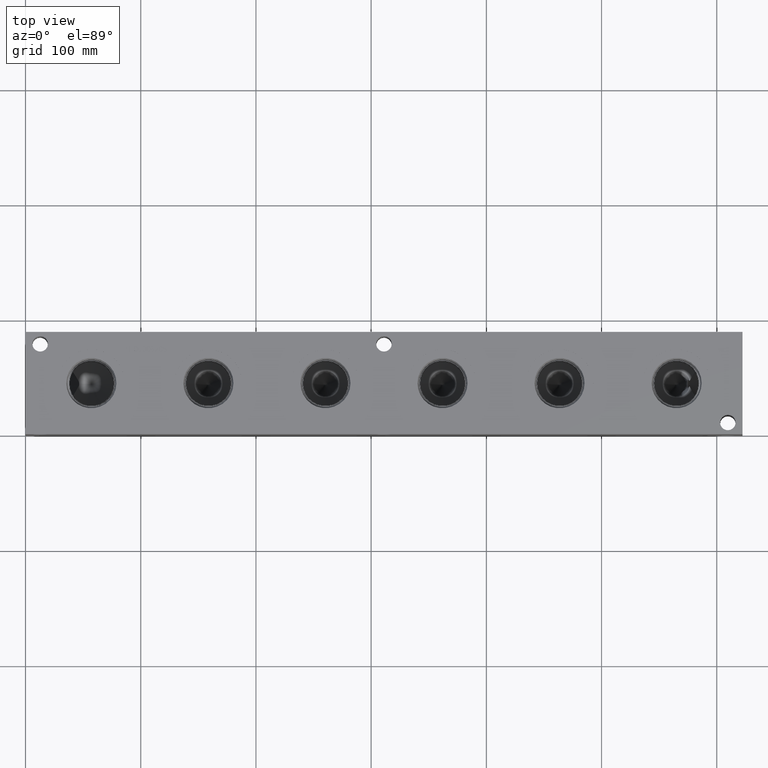
[diagram: clean part render]
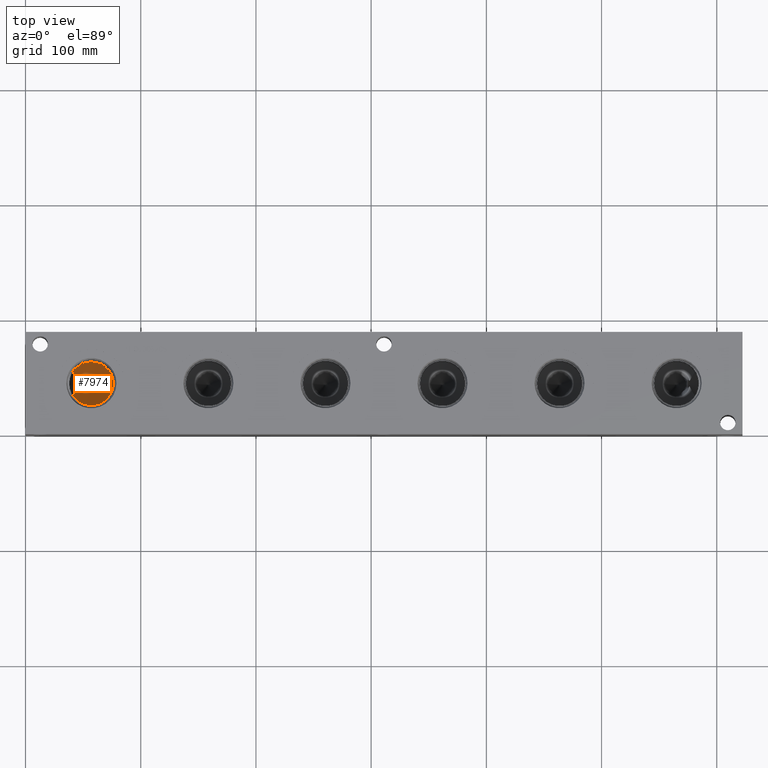
[diagram: same view with one face highlighted and labeled with its STEP entity id]
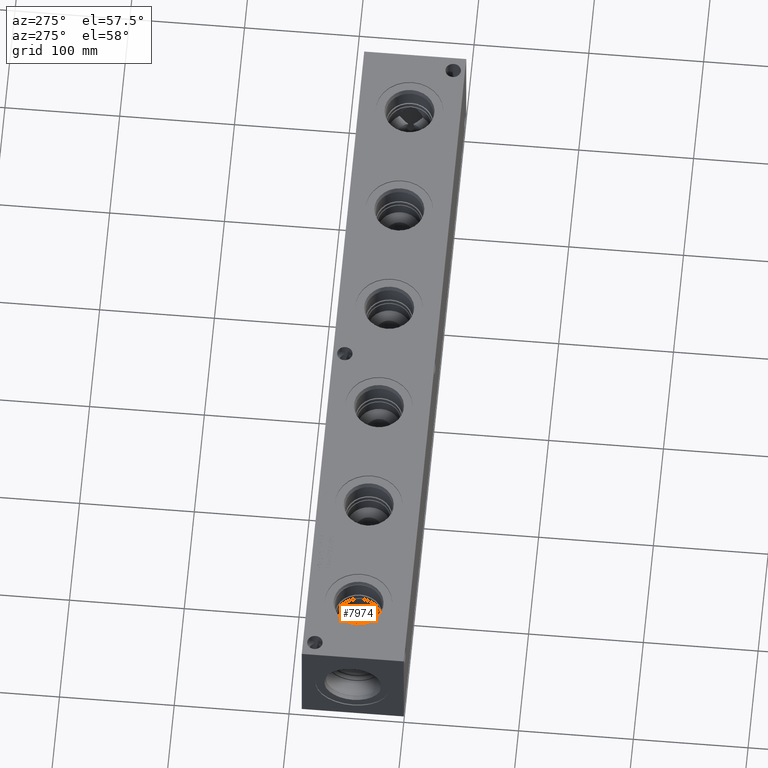
[diagram: same view with one face highlighted and labeled with its STEP entity id]
A machine part, top view. The second image highlights one B-rep face of the part: STEP entity #7974.
A second angle (auxiliary view) of the same face is appended — the face is thin or edge-on in the first view.
In plain terms, the highlighted conical surface has half-angle 60 deg.
Its self-contained STEP definition (entity closure, byte-faithful):
#35=CONICAL_SURFACE('',#8409,9.525,1.0471975511966);
#219=CIRCLE('',#8408,19.05);
#573=B_SPLINE_CURVE_WITH_KNOTS('',3,(#13819,#13820,#13821,#13822,#13823,
#13824,#13825,#13826,#13827,#13828,#13829,#13830),.UNSPECIFIED.,.F.,.F.,
(4,2,2,2,2,4),(2.06973539609364,2.66058533667687,3.10401622612301,3.32573167084609,
3.43658939320762,3.54744711556916),.UNSPECIFIED.);
#574=B_SPLINE_CURVE_WITH_KNOTS('',3,(#13831,#13832,#13833,#13834,#13835,
#13836,#13837,#13838,#13839,#13840,#13841,#13842),.UNSPECIFIED.,.F.,.F.,
(4,2,2,2,2,4),(3.54744711556916,3.65830483793069,3.76916256029223,3.9908780050153,
4.43430889446145,5.02515883504468),.UNSPECIFIED.);
#1065=FACE_OUTER_BOUND('',#1525,.T.);
#1525=EDGE_LOOP('',(#6883,#6884,#6885,#6886,#6887));
#2251=LINE('',#13844,#2955);
#2955=VECTOR('',#9941,9.525);
#3675=VERTEX_POINT('',#13790);
#3676=VERTEX_POINT('',#13803);
#3677=VERTEX_POINT('',#13818);
#3678=VERTEX_POINT('',#13843);
#4763=EDGE_CURVE('',#3676,#3675,#219,.T.);
#4765=EDGE_CURVE('',#3676,#3677,#573,.T.);
#4766=EDGE_CURVE('',#3677,#3675,#574,.T.);
#4767=EDGE_CURVE('',#3677,#3678,#2251,.T.);
#6883=ORIENTED_EDGE('',*,*,#4765,.F.);
#6884=ORIENTED_EDGE('',*,*,#4763,.T.);
#6885=ORIENTED_EDGE('',*,*,#4766,.F.);
#6886=ORIENTED_EDGE('',*,*,#4767,.T.);
#6887=ORIENTED_EDGE('',*,*,#4767,.F.);
#7974=ADVANCED_FACE('',(#1065),#35,.F.);
#8408=AXIS2_PLACEMENT_3D('',#13804,#9937,#9938);
#8409=AXIS2_PLACEMENT_3D('',#13817,#9939,#9940);
#9937=DIRECTION('center_axis',(0.,0.,1.));
#9938=DIRECTION('ref_axis',(1.,0.,0.));
#9939=DIRECTION('center_axis',(0.,0.,1.));
#9940=DIRECTION('ref_axis',(1.,0.,0.));
#9941=DIRECTION('',(0.866025403784439,1.06057523872491E-16,-0.5));
#13790=CARTESIAN_POINT('',(41.1105339762299,54.7280362751025,53.85288));
#13803=CARTESIAN_POINT('',(41.1105339762299,34.1719637248975,53.85288));
#13804=CARTESIAN_POINT('Origin',(57.15,44.45,53.85288));
#13817=CARTESIAN_POINT('Origin',(57.15,44.45,48.3536186859688));
#13818=CARTESIAN_POINT('',(46.5366282474327,44.45,48.981990410292));
#13819=CARTESIAN_POINT('Ctrl Pts',(41.1105339762299,34.1719637248975,53.85288));
#13820=CARTESIAN_POINT('Ctrl Pts',(42.0260007746084,35.5275973015199,52.9855862536036));
#13821=CARTESIAN_POINT('Ctrl Pts',(42.9049407641156,36.8463645161689,52.1648136825663));
#13822=CARTESIAN_POINT('Ctrl Pts',(44.349446867856,39.1233471643917,50.8510766713463));
#13823=CARTESIAN_POINT('Ctrl Pts',(44.9314325027242,40.0679722931336,50.3343967253178));
#13824=CARTESIAN_POINT('Ctrl Pts',(45.7123159931903,41.5467566629152,49.6633903183327));
#13825=CARTESIAN_POINT('Ctrl Pts',(45.9552558595794,42.0437860364505,49.4589239271835));
#13826=CARTESIAN_POINT('Ctrl Pts',(46.2599408791691,42.8581257394532,49.206905482795));
#13827=CARTESIAN_POINT('Ctrl Pts',(46.3508696948106,43.1405456171442,49.1325516678174));
#13828=CARTESIAN_POINT('Ctrl Pts',(46.4890700925192,43.7517786089913,49.0202372527412));
#13829=CARTESIAN_POINT('Ctrl Pts',(46.5366282474327,44.0804742587949,48.981990410292));
#13830=CARTESIAN_POINT('Ctrl Pts',(46.5366282474327,44.45,48.981990410292));
#13831=CARTESIAN_POINT('Ctrl Pts',(46.5366282474327,44.45,48.981990410292));
#13832=CARTESIAN_POINT('Ctrl Pts',(46.5366282474327,44.8195257412051,48.981990410292));
#13833=CARTESIAN_POINT('Ctrl Pts',(46.4890700925192,45.1482213910087,49.0202372527412));
#13834=CARTESIAN_POINT('Ctrl Pts',(46.3508696948106,45.7594543828558,49.1325516678174));
#13835=CARTESIAN_POINT('Ctrl Pts',(46.2599408791691,46.0418742605467,49.206905482795));
#13836=CARTESIAN_POINT('Ctrl Pts',(45.9552558595794,46.8562139635495,49.4589239271835));
#13837=CARTESIAN_POINT('Ctrl Pts',(45.7123159931903,47.3532433370848,49.6633903183327));
#13838=CARTESIAN_POINT('Ctrl Pts',(44.9314325027242,48.8320277068664,50.3343967253178));
#13839=CARTESIAN_POINT('Ctrl Pts',(44.349446867856,49.7766528356083,50.8510766713463));
#13840=CARTESIAN_POINT('Ctrl Pts',(42.9049407641156,52.0536354838311,52.1648136825663));
#13841=CARTESIAN_POINT('Ctrl Pts',(42.0260007746084,53.3724026984801,52.9855862536036));
#13842=CARTESIAN_POINT('Ctrl Pts',(41.1105339762299,54.7280362751025,53.85288));
#13843=CARTESIAN_POINT('',(57.15,44.45,42.8543573719376));
#13844=CARTESIAN_POINT('',(47.625,44.45,48.3536186859688));